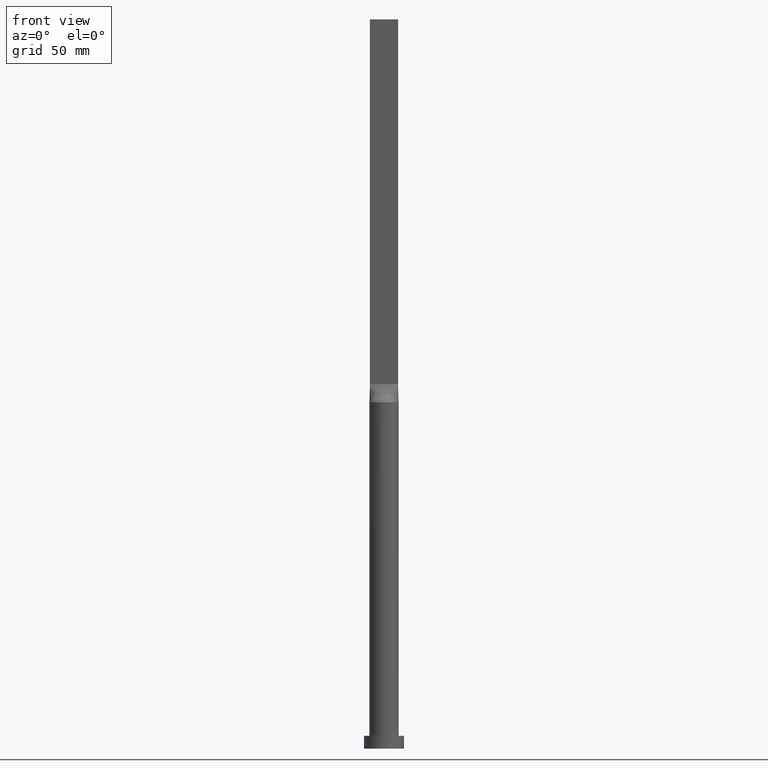
[diagram: clean part render]
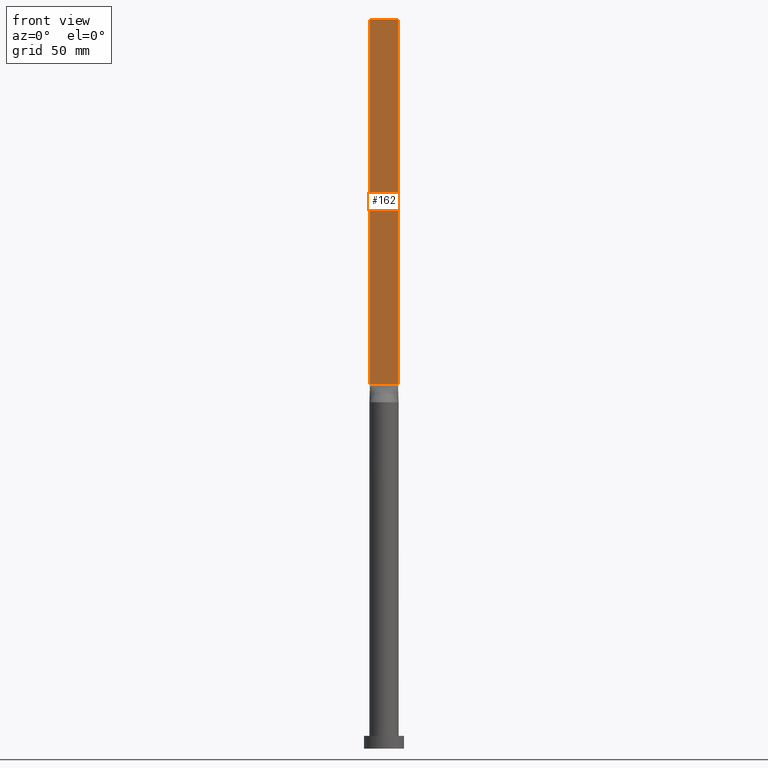
[diagram: same view with one face highlighted and labeled with its STEP entity id]
A machine part, front view. The second image highlights one B-rep face of the part: STEP entity #162.
In plain terms, the highlighted planar face has unit normal (0, 1, -0).
Its self-contained STEP definition (entity closure, byte-faithful):
#15 = VERTEX_POINT ( 'NONE', #208 ) ;
#31 = LINE ( 'NONE', #274, #522 ) ;
#54 = EDGE_LOOP ( 'NONE', ( #332, #559, #360, #505 ) ) ;
#128 = CARTESIAN_POINT ( 'NONE',  ( -7.750000000000000000, -0.9999999999999986677, 200.0000000000000000 ) ) ;
#130 = CARTESIAN_POINT ( 'NONE',  ( -7.750000000000000000, -0.9999999999999986677, 400.0000000000000000 ) ) ;
#162 = ADVANCED_FACE ( 'NONE', ( #385 ), #584, .F. ) ;
#175 = DIRECTION ( 'NONE',  ( 1.000000000000000000, -6.994852725712931474E-17, 0.000000000000000000 ) ) ;
#208 = CARTESIAN_POINT ( 'NONE',  ( 7.750000000000000000, -0.9999999999999997780, 200.0000000000000000 ) ) ;
#227 = DIRECTION ( 'NONE',  ( 6.994852725712931474E-17, 1.000000000000000000, -0.000000000000000000 ) ) ;
#238 = VECTOR ( 'NONE', #477, 1000.000000000000000 ) ;
#253 = VERTEX_POINT ( 'NONE', #615 ) ;
#266 = VECTOR ( 'NONE', #175, 1000.000000000000000 ) ;
#271 = CARTESIAN_POINT ( 'NONE',  ( -7.750000000000000000, -0.9999999999999986677, 400.0000000000000000 ) ) ;
#274 = CARTESIAN_POINT ( 'NONE',  ( -7.750000000000000000, -0.9999999999999986677, 400.0000000000000000 ) ) ;
#320 = LINE ( 'NONE', #271, #238 ) ;
#332 = ORIENTED_EDGE ( 'NONE', *, *, #436, .T. ) ;
#360 = ORIENTED_EDGE ( 'NONE', *, *, #575, .F. ) ;
#365 = CARTESIAN_POINT ( 'NONE',  ( 7.750000000000000000, -0.9999999999999997780, 400.0000000000000000 ) ) ;
#371 = CARTESIAN_POINT ( 'NONE',  ( -7.750000000000000000, -0.9999999999999986677, 400.0000000000000000 ) ) ;
#385 = FACE_OUTER_BOUND ( 'NONE', #54, .T. ) ;
#411 = VECTOR ( 'NONE', #470, 1000.000000000000000 ) ;
#425 = DIRECTION ( 'NONE',  ( -1.000000000000000000, 6.994852725712931474E-17, 0.000000000000000000 ) ) ;
#436 = EDGE_CURVE ( 'NONE', #253, #15, #623, .T. ) ;
#470 = DIRECTION ( 'NONE',  ( -0.000000000000000000, -0.000000000000000000, -1.000000000000000000 ) ) ;
#472 = DIRECTION ( 'NONE',  ( 1.000000000000000000, -6.994852725712931474E-17, 0.000000000000000000 ) ) ;
#477 = DIRECTION ( 'NONE',  ( -0.000000000000000000, -0.000000000000000000, -1.000000000000000000 ) ) ;
#496 = VERTEX_POINT ( 'NONE', #365 ) ;
#505 = ORIENTED_EDGE ( 'NONE', *, *, #596, .T. ) ;
#510 = EDGE_CURVE ( 'NONE', #496, #15, #571, .T. ) ;
#522 = VECTOR ( 'NONE', #472, 1000.000000000000000 ) ;
#525 = CARTESIAN_POINT ( 'NONE',  ( 7.750000000000000000, -0.9999999999999997780, 400.0000000000000000 ) ) ;
#540 = AXIS2_PLACEMENT_3D ( 'NONE', #130, #227, #425 ) ;
#557 = VERTEX_POINT ( 'NONE', #371 ) ;
#559 = ORIENTED_EDGE ( 'NONE', *, *, #510, .F. ) ;
#571 = LINE ( 'NONE', #525, #411 ) ;
#575 = EDGE_CURVE ( 'NONE', #557, #496, #31, .T. ) ;
#584 = PLANE ( 'NONE',  #540 ) ;
#596 = EDGE_CURVE ( 'NONE', #557, #253, #320, .T. ) ;
#615 = CARTESIAN_POINT ( 'NONE',  ( -7.750000000000000000, -0.9999999999999986677, 200.0000000000000000 ) ) ;
#623 = LINE ( 'NONE', #128, #266 ) ;